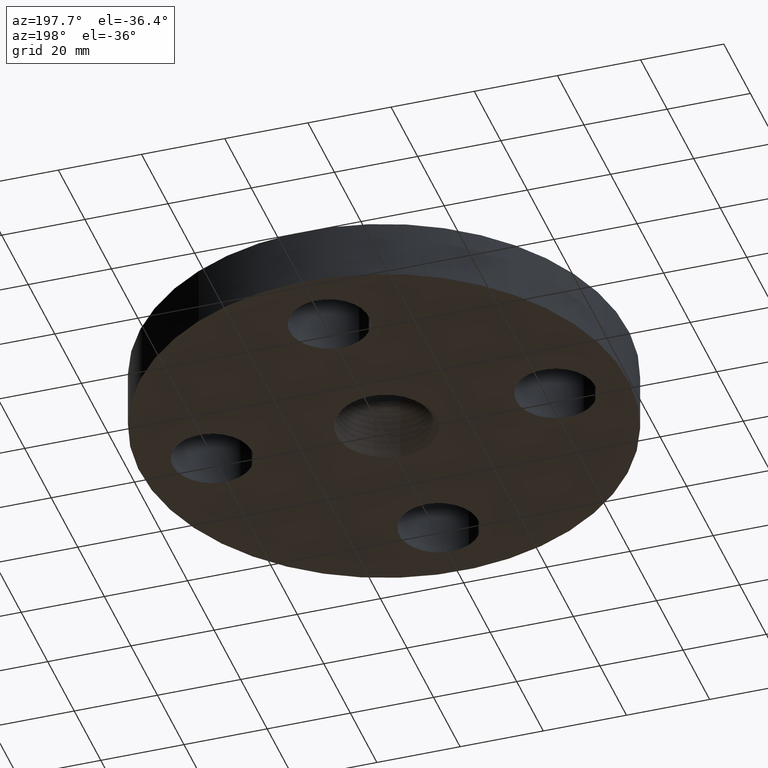
[diagram: clean part render]
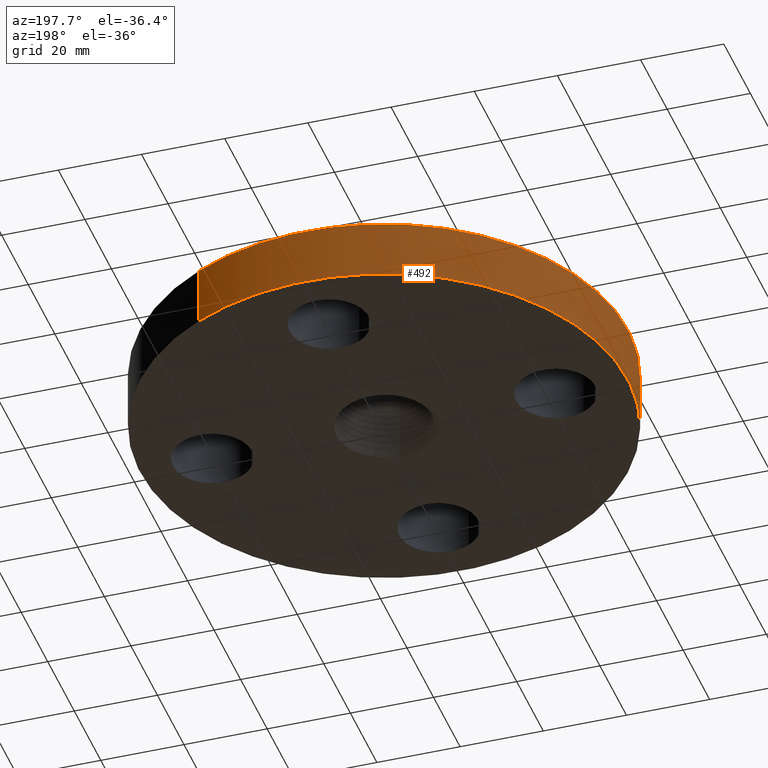
[diagram: same view with one face highlighted and labeled with its STEP entity id]
A machine part, auxiliary view. The second image highlights one B-rep face of the part: STEP entity #492.
In plain terms, the highlighted cylindrical surface (partial cylindrical patch) has radius 58.674 mm, axis along (0, 0, -1).
Its self-contained STEP definition (entity closure, byte-faithful):
#178=AXIS2_PLACEMENT_3D('Circle Axis2P3D',#176,#177,$) ;
#453=AXIS2_PLACEMENT_3D('Cylinder Axis2P3D',#450,#451,#452) ;
#483=AXIS2_PLACEMENT_3D('Circle Axis2P3D',#481,#482,$) ;
#171=CARTESIAN_POINT('Vertex',(1.10747299418,2.02721571797,6.99353086378E-017)) ;
#173=CARTESIAN_POINT('Vertex',(-1.10747299418,-2.02721571797,6.99353086378E-017)) ;
#176=CARTESIAN_POINT('Axis2P3D Location',(0.,0.,0.)) ;
#450=CARTESIAN_POINT('Axis2P3D Location',(0.,0.,0.470000000002)) ;
#455=CARTESIAN_POINT('Line Origine',(1.10747299418,2.02721571797,0.280000000001)) ;
#459=CARTESIAN_POINT('Vertex',(1.10747299418,2.02721571797,0.560000000002)) ;
#466=CARTESIAN_POINT('Vertex',(-1.10747299418,-2.02721571797,0.560000000002)) ;
#469=CARTESIAN_POINT('Line Origine',(-1.10747299418,-2.02721571797,0.280000000001)) ;
#481=CARTESIAN_POINT('Axis2P3D Location',(0.,0.,0.560000000002)) ;
#177=DIRECTION('Axis2P3D Direction',(0.,0.,-0.0393700787402)) ;
#451=DIRECTION('Axis2P3D Direction',(0.,0.,-0.0393700787402)) ;
#452=DIRECTION('Axis2P3D XDirection',(-0.0188750212049,-0.0345504945626,0.)) ;
#456=DIRECTION('Vector Direction',(0.,0.,-0.0393700787402)) ;
#470=DIRECTION('Vector Direction',(0.,0.,-0.0393700787402)) ;
#482=DIRECTION('Axis2P3D Direction',(0.,0.,-0.0393700787402)) ;
#457=VECTOR('Line Direction',#456,0.0393700787402) ;
#471=VECTOR('Line Direction',#470,0.0393700787402) ;
#487=ORIENTED_EDGE('',*,*,#180,.F.) ;
#488=ORIENTED_EDGE('',*,*,#473,.T.) ;
#489=ORIENTED_EDGE('',*,*,#485,.T.) ;
#490=ORIENTED_EDGE('',*,*,#461,.F.) ;
#492=ADVANCED_FACE('PartBody',(#491),#454,.T.) ;
#179=CIRCLE('generated circle',#178,2.31000000001) ;
#484=CIRCLE('generated circle',#483,2.31000000001) ;
#454=CYLINDRICAL_SURFACE('generated cylinder',#453,2.31000000001) ;
#180=EDGE_CURVE('',#174,#172,#179,.T.) ;
#461=EDGE_CURVE('',#172,#460,#458,.F.) ;
#473=EDGE_CURVE('',#174,#467,#472,.F.) ;
#485=EDGE_CURVE('',#467,#460,#484,.T.) ;
#486=EDGE_LOOP('',(#487,#488,#489,#490)) ;
#491=FACE_OUTER_BOUND('',#486,.T.) ;
#458=LINE('Line',#455,#457) ;
#472=LINE('Line',#469,#471) ;
#172=VERTEX_POINT('',#171) ;
#174=VERTEX_POINT('',#173) ;
#460=VERTEX_POINT('',#459) ;
#467=VERTEX_POINT('',#466) ;